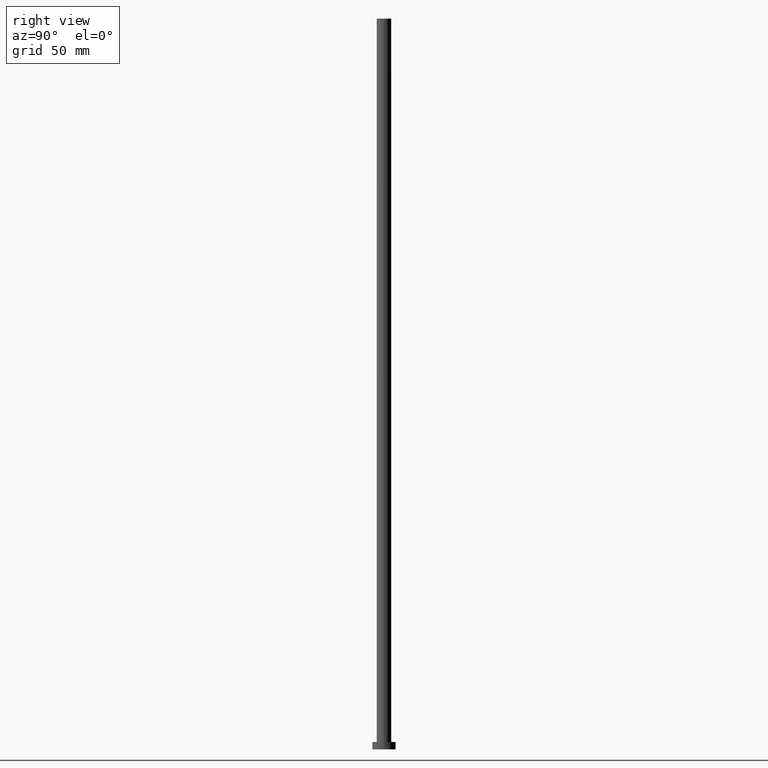
[diagram: clean part render]
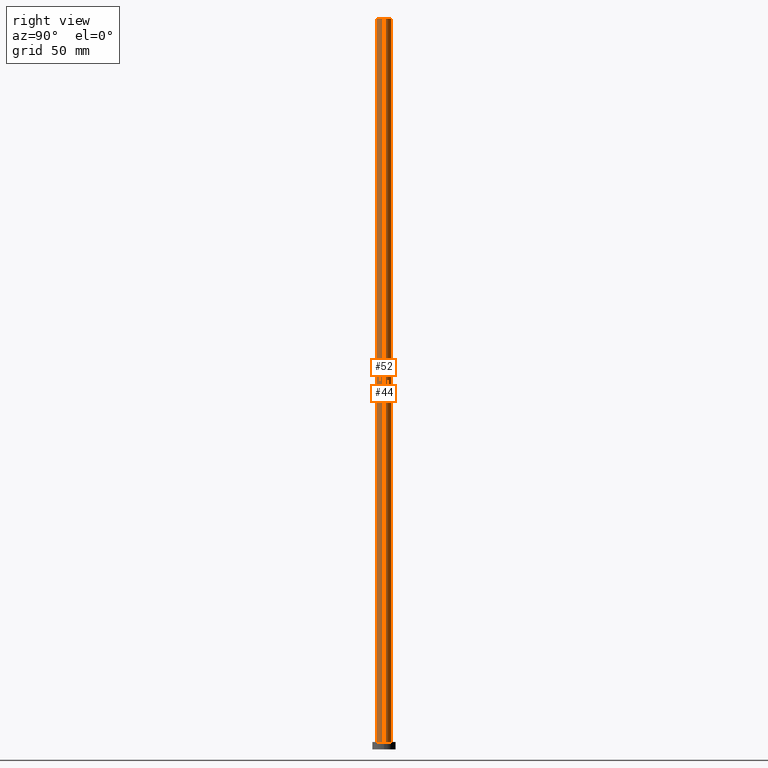
[diagram: same view with one multi-face feature highlighted, each face labeled with its STEP entity id]
A machine part, right view. The highlighted faces form ONE feature: a constant-radius fillet chain: 2 tangent blend faces with common blend radius 5 mm. The faces share edges in the B-rep.
Their STEP definitions:
[1] entity #52 (Cylinder):
#12 = LINE ( 'NONE', #85, #190 ) ;
#14 = CARTESIAN_POINT ( 'NONE',  ( 5.000000000000000888, 6.123233995736767268E-16, 500.0000000000000000 ) ) ;
#16 = EDGE_LOOP ( 'NONE', ( #61, #95, #143, #20 ) ) ;
#19 = DIRECTION ( 'NONE',  ( -0.000000000000000000, -0.000000000000000000, -1.000000000000000000 ) ) ;
#20 = ORIENTED_EDGE ( 'NONE', *, *, #105, .T. ) ;
#24 = DIRECTION ( 'NONE',  ( -0.000000000000000000, -0.000000000000000000, -1.000000000000000000 ) ) ;
#26 = DIRECTION ( 'NONE',  ( -1.000000000000000000, 0.000000000000000000, 0.000000000000000000 ) ) ;
#46 = VERTEX_POINT ( 'NONE', #14 ) ;
#52 = ADVANCED_FACE ( 'NONE', ( #123 ), #223, .T. ) ;
#58 = DIRECTION ( 'NONE',  ( 0.000000000000000000, 0.000000000000000000, 1.000000000000000000 ) ) ;
#61 = ORIENTED_EDGE ( 'NONE', *, *, #150, .F. ) ;
#67 = AXIS2_PLACEMENT_3D ( 'NONE', #191, #58, #151 ) ;
#74 = CARTESIAN_POINT ( 'NONE',  ( -5.000000000000000888, 0.000000000000000000, 5.000000000000000000 ) ) ;
#76 = CARTESIAN_POINT ( 'NONE',  ( 5.000000000000000888, 6.123233995736767268E-16, 5.000000000000000000 ) ) ;
#85 = CARTESIAN_POINT ( 'NONE',  ( -5.000000000000000888, 0.000000000000000000, 500.0000000000000000 ) ) ;
#86 = VECTOR ( 'NONE', #19, 1000.000000000000000 ) ;
#89 = VERTEX_POINT ( 'NONE', #76 ) ;
#91 = CARTESIAN_POINT ( 'NONE',  ( 0.000000000000000000, 0.000000000000000000, 500.0000000000000000 ) ) ;
#95 = ORIENTED_EDGE ( 'NONE', *, *, #235, .F. ) ;
#105 = EDGE_CURVE ( 'NONE', #254, #89, #185, .T. ) ;
#118 = CARTESIAN_POINT ( 'NONE',  ( 0.000000000000000000, 0.000000000000000000, 500.0000000000000000 ) ) ;
#123 = FACE_OUTER_BOUND ( 'NONE', #16, .T. ) ;
#132 = DIRECTION ( 'NONE',  ( 1.000000000000000000, 0.000000000000000000, 0.000000000000000000 ) ) ;
#140 = CIRCLE ( 'NONE', #144, 5.000000000000000888 ) ;
#143 = ORIENTED_EDGE ( 'NONE', *, *, #232, .T. ) ;
#144 = AXIS2_PLACEMENT_3D ( 'NONE', #91, #241, #132 ) ;
#150 = EDGE_CURVE ( 'NONE', #46, #89, #155, .T. ) ;
#151 = DIRECTION ( 'NONE',  ( 1.000000000000000000, 0.000000000000000000, 0.000000000000000000 ) ) ;
#155 = LINE ( 'NONE', #217, #86 ) ;
#158 = AXIS2_PLACEMENT_3D ( 'NONE', #118, #24, #26 ) ;
#185 = CIRCLE ( 'NONE', #67, 5.000000000000000888 ) ;
#190 = VECTOR ( 'NONE', #252, 1000.000000000000000 ) ;
#191 = CARTESIAN_POINT ( 'NONE',  ( 0.000000000000000000, 0.000000000000000000, 5.000000000000000000 ) ) ;
#193 = CARTESIAN_POINT ( 'NONE',  ( -5.000000000000000888, 0.000000000000000000, 500.0000000000000000 ) ) ;
#209 = VERTEX_POINT ( 'NONE', #193 ) ;
#217 = CARTESIAN_POINT ( 'NONE',  ( 5.000000000000000888, 6.123233995736767268E-16, 500.0000000000000000 ) ) ;
#223 = CYLINDRICAL_SURFACE ( 'NONE', #158, 5.000000000000000888 ) ;
#232 = EDGE_CURVE ( 'NONE', #209, #254, #12, .T. ) ;
#235 = EDGE_CURVE ( 'NONE', #209, #46, #140, .T. ) ;
#241 = DIRECTION ( 'NONE',  ( 0.000000000000000000, 0.000000000000000000, 1.000000000000000000 ) ) ;
#252 = DIRECTION ( 'NONE',  ( -0.000000000000000000, -0.000000000000000000, -1.000000000000000000 ) ) ;
#254 = VERTEX_POINT ( 'NONE', #74 ) ;
[2] entity #44 (Cylinder):
#12 = LINE ( 'NONE', #85, #190 ) ;
#13 = CYLINDRICAL_SURFACE ( 'NONE', #230, 5.000000000000000888 ) ;
#14 = CARTESIAN_POINT ( 'NONE',  ( 5.000000000000000888, 6.123233995736767268E-16, 500.0000000000000000 ) ) ;
#19 = DIRECTION ( 'NONE',  ( -0.000000000000000000, -0.000000000000000000, -1.000000000000000000 ) ) ;
#27 = ORIENTED_EDGE ( 'NONE', *, *, #96, .T. ) ;
#39 = EDGE_LOOP ( 'NONE', ( #188, #87, #27, #110 ) ) ;
#44 = ADVANCED_FACE ( 'NONE', ( #112 ), #13, .T. ) ;
#46 = VERTEX_POINT ( 'NONE', #14 ) ;
#53 = AXIS2_PLACEMENT_3D ( 'NONE', #160, #60, #141 ) ;
#60 = DIRECTION ( 'NONE',  ( 0.000000000000000000, 0.000000000000000000, 1.000000000000000000 ) ) ;
#74 = CARTESIAN_POINT ( 'NONE',  ( -5.000000000000000888, 0.000000000000000000, 5.000000000000000000 ) ) ;
#76 = CARTESIAN_POINT ( 'NONE',  ( 5.000000000000000888, 6.123233995736767268E-16, 5.000000000000000000 ) ) ;
#81 = CIRCLE ( 'NONE', #53, 5.000000000000000888 ) ;
#85 = CARTESIAN_POINT ( 'NONE',  ( -5.000000000000000888, 0.000000000000000000, 500.0000000000000000 ) ) ;
#86 = VECTOR ( 'NONE', #19, 1000.000000000000000 ) ;
#87 = ORIENTED_EDGE ( 'NONE', *, *, #150, .T. ) ;
#88 = CARTESIAN_POINT ( 'NONE',  ( 0.000000000000000000, 0.000000000000000000, 500.0000000000000000 ) ) ;
#89 = VERTEX_POINT ( 'NONE', #76 ) ;
#96 = EDGE_CURVE ( 'NONE', #89, #254, #81, .T. ) ;
#106 = AXIS2_PLACEMENT_3D ( 'NONE', #88, #236, #216 ) ;
#109 = DIRECTION ( 'NONE',  ( -0.000000000000000000, -0.000000000000000000, -1.000000000000000000 ) ) ;
#110 = ORIENTED_EDGE ( 'NONE', *, *, #232, .F. ) ;
#112 = FACE_OUTER_BOUND ( 'NONE', #39, .T. ) ;
#141 = DIRECTION ( 'NONE',  ( 1.000000000000000000, 0.000000000000000000, 0.000000000000000000 ) ) ;
#150 = EDGE_CURVE ( 'NONE', #46, #89, #155, .T. ) ;
#155 = LINE ( 'NONE', #217, #86 ) ;
#160 = CARTESIAN_POINT ( 'NONE',  ( 0.000000000000000000, 0.000000000000000000, 5.000000000000000000 ) ) ;
#175 = EDGE_CURVE ( 'NONE', #46, #209, #245, .T. ) ;
#188 = ORIENTED_EDGE ( 'NONE', *, *, #175, .F. ) ;
#190 = VECTOR ( 'NONE', #252, 1000.000000000000000 ) ;
#193 = CARTESIAN_POINT ( 'NONE',  ( -5.000000000000000888, 0.000000000000000000, 500.0000000000000000 ) ) ;
#195 = DIRECTION ( 'NONE',  ( -1.000000000000000000, 0.000000000000000000, 0.000000000000000000 ) ) ;
#199 = CARTESIAN_POINT ( 'NONE',  ( 0.000000000000000000, 0.000000000000000000, 500.0000000000000000 ) ) ;
#209 = VERTEX_POINT ( 'NONE', #193 ) ;
#216 = DIRECTION ( 'NONE',  ( 1.000000000000000000, 0.000000000000000000, 0.000000000000000000 ) ) ;
#217 = CARTESIAN_POINT ( 'NONE',  ( 5.000000000000000888, 6.123233995736767268E-16, 500.0000000000000000 ) ) ;
#230 = AXIS2_PLACEMENT_3D ( 'NONE', #199, #109, #195 ) ;
#232 = EDGE_CURVE ( 'NONE', #209, #254, #12, .T. ) ;
#236 = DIRECTION ( 'NONE',  ( 0.000000000000000000, 0.000000000000000000, 1.000000000000000000 ) ) ;
#245 = CIRCLE ( 'NONE', #106, 5.000000000000000888 ) ;
#252 = DIRECTION ( 'NONE',  ( -0.000000000000000000, -0.000000000000000000, -1.000000000000000000 ) ) ;
#254 = VERTEX_POINT ( 'NONE', #74 ) ;